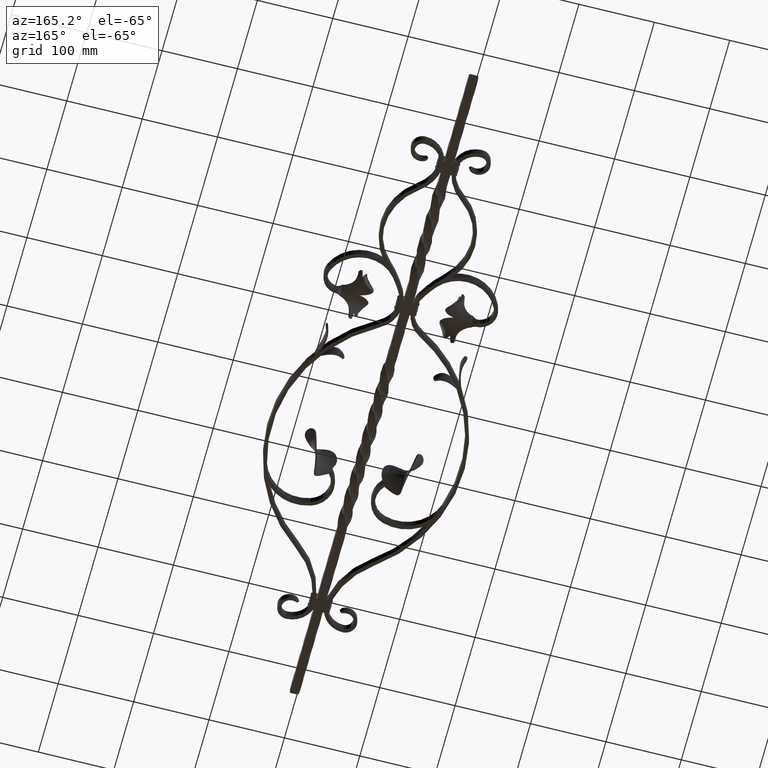
[diagram: clean part render]
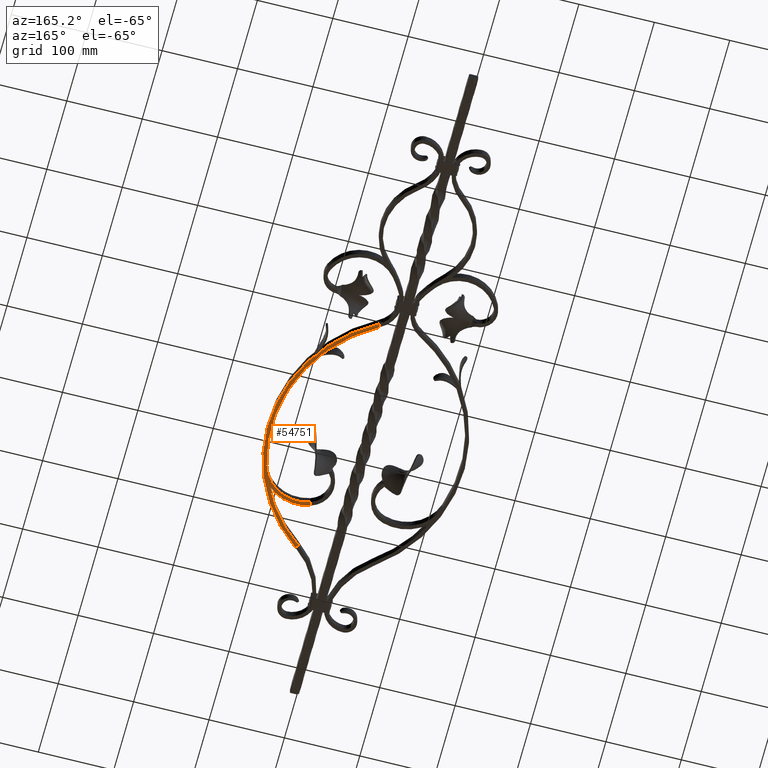
[diagram: same view with one face highlighted and labeled with its STEP entity id]
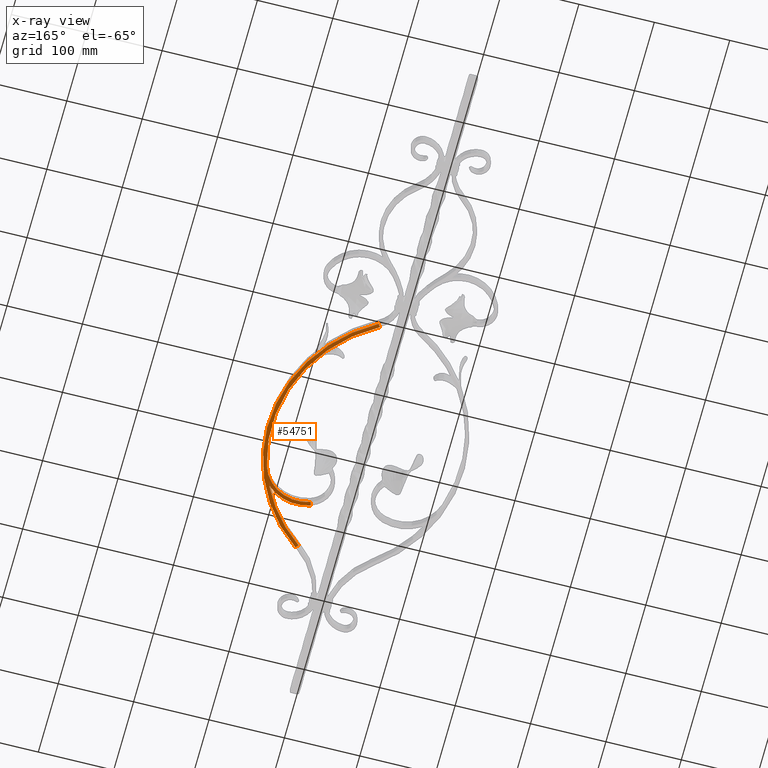
[diagram: x-ray of the same camera — body ghosted, the highlighted face saturated]
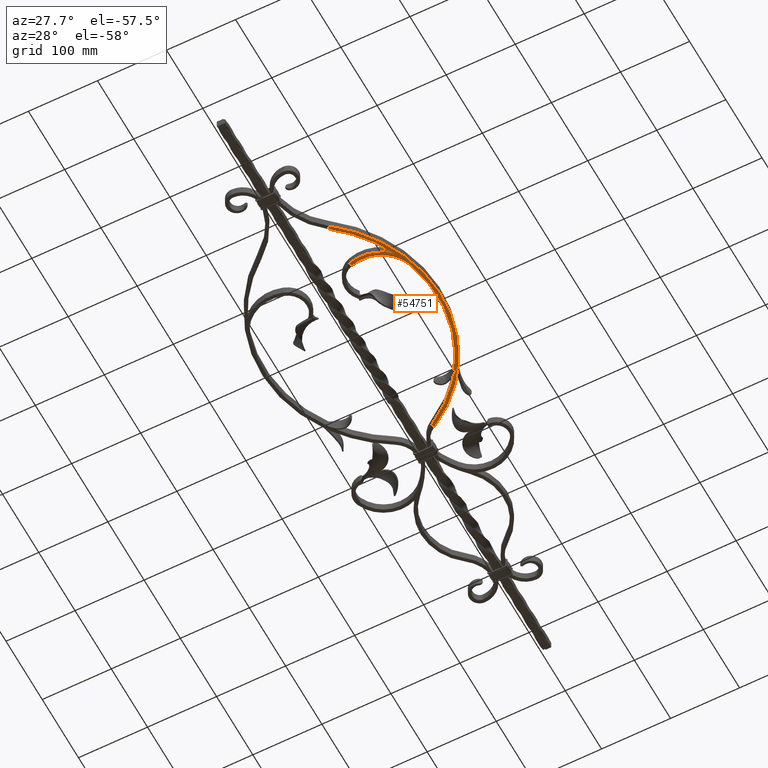
[diagram: same view with one face highlighted and labeled with its STEP entity id]
A machine part, auxiliary view. The second image highlights one B-rep face of the part: STEP entity #54751.
The next image is the same camera in x-ray: the body ghosted, the highlighted face saturated — about 0% of this face is hidden behind the body in this view.
A second angle (auxiliary view) of the same face is appended — the face is thin or edge-on in the first view.
In plain terms, the highlighted planar face has unit normal (-0, 0, -1).
Its self-contained STEP definition (entity closure, byte-faithful):
#236 = CIRCLE ( 'NONE', #22569, 200.6245386149037415 ) ;
#333 = AXIS2_PLACEMENT_3D ( 'NONE', #10826, #44416, #36605 ) ;
#737 = CIRCLE ( 'NONE', #333, 195.6245386149036847 ) ;
#1233 = CARTESIAN_POINT ( 'NONE',  ( 65.76763092655829723, -131.9999998333333338, -6.000000000000000000 ) ) ;
#2471 = CARTESIAN_POINT ( 'NONE',  ( 47.74672717694629398, -187.1293661279631237, -6.000000000000000000 ) ) ;
#3027 = DIRECTION ( 'NONE',  ( 0.6093817276569273300, -0.7928769828906994110, -0.000000000000000000 ) ) ;
#4647 = EDGE_CURVE ( 'NONE', #7759, #42026, #737, .T. ) ;
#5073 = CARTESIAN_POINT ( 'NONE',  ( -70.62453861500259222, -90.29945903481983294, -6.000000000000000000 ) ) ;
#5767 = CARTESIAN_POINT ( 'NONE',  ( 51.63238933652131379, -249.3700379056433860, -6.000000000000000000 ) ) ;
#6900 = DIRECTION ( 'NONE',  ( -0.3107052370615501213, -0.9505063154248507562, -0.000000000000000000 ) ) ;
#7759 = VERTEX_POINT ( 'NONE', #53609 ) ;
#7944 = CIRCLE ( 'NONE', #41854, 58.00000000000212452 ) ;
#8562 = DIRECTION ( 'NONE',  ( -0.000000000000000000, -0.000000000000000000, -1.000000000000000000 ) ) ;
#9014 = EDGE_CURVE ( 'NONE', #42026, #32390, #26416, .T. ) ;
#9368 = DIRECTION ( 'NONE',  ( 0.4972331834549500451, 0.8676169438590143335, 0.000000000000000000 ) ) ;
#9955 = DIRECTION ( 'NONE',  ( -1.000000000000000000, 0.000000000000000000, 0.000000000000000000 ) ) ;
#10378 = EDGE_CURVE ( 'NONE', #7759, #14628, #42262, .T. ) ;
#10516 = AXIS2_PLACEMENT_3D ( 'NONE', #1233, #47987, #26464 ) ;
#10826 = CARTESIAN_POINT ( 'NONE',  ( -70.62453861500259222, -90.29945903481983294, -6.000000000000000000 ) ) ;
#12311 = EDGE_CURVE ( 'NONE', #32390, #54099, #48357, .T. ) ;
#12483 = EDGE_CURVE ( 'NONE', #24838, #38988, #42363, .T. ) ;
#13349 = LINE ( 'NONE', #28641, #40526 ) ;
#13663 = ORIENTED_EDGE ( 'NONE', *, *, #10378, .T. ) ;
#14628 = VERTEX_POINT ( 'NONE', #53744 ) ;
#15180 = DIRECTION ( 'NONE',  ( 0.4972331834549501561, 0.8676169438590142224, -0.000000000000000000 ) ) ;
#15519 = ORIENTED_EDGE ( 'NONE', *, *, #55075, .T. ) ;
#17940 = DIRECTION ( 'NONE',  ( -0.000000000000000000, -0.000000000000000000, -1.000000000000000000 ) ) ;
#19823 = CARTESIAN_POINT ( 'NONE',  ( 26.64647348239179792, 79.42770530207266688, -6.000000000000000000 ) ) ;
#20248 = FACE_OUTER_BOUND ( 'NONE', #24248, .T. ) ;
#21570 = DIRECTION ( 'NONE',  ( 0.9563022665387032051, -0.2923798471388528442, 0.000000000000000000 ) ) ;
#22033 = AXIS2_PLACEMENT_3D ( 'NONE', #50496, #54236, #33060 ) ;
#22569 = AXIS2_PLACEMENT_3D ( 'NONE', #5073, #17940, #9368 ) ;
#22660 = ORIENTED_EDGE ( 'NONE', *, *, #12483, .F. ) ;
#23171 = CARTESIAN_POINT ( 'NONE',  ( 106.5441543421316908, -173.2465165121929545, -6.000000000000000000 ) ) ;
#23295 = AXIS2_PLACEMENT_3D ( 'NONE', #19823, #32397, #9955 ) ;
#24248 = EDGE_LOOP ( 'NONE', ( #22660, #27134, #48127, #50187, #32415, #13663, #15519, #33521 ) ) ;
#24838 = VERTEX_POINT ( 'NONE', #23171 ) ;
#26416 = CIRCLE ( 'NONE', #10516, 53.00000000000211742 ) ;
#26464 = DIRECTION ( 'NONE',  ( 0.9563022665386825549, -0.2923798471389205678, 0.000000000000000000 ) ) ;
#26920 = VERTEX_POINT ( 'NONE', #5767 ) ;
#27134 = ORIENTED_EDGE ( 'NONE', *, *, #38134, .T. ) ;
#28641 = CARTESIAN_POINT ( 'NONE',  ( 48.58548069823670801, -245.4056529911898679, -6.000000000000000000 ) ) ;
#31280 = PLANE ( 'NONE',  #23295 ) ;
#32390 = VERTEX_POINT ( 'NONE', #43312 ) ;
#32397 = DIRECTION ( 'NONE',  ( -0.000000000000000000, 0.000000000000000000, -1.000000000000000000 ) ) ;
#32415 = ORIENTED_EDGE ( 'NONE', *, *, #4647, .F. ) ;
#33060 = DIRECTION ( 'NONE',  ( 0.4972331834549501561, 0.8676169438590144445, 0.000000000000000000 ) ) ;
#33521 = ORIENTED_EDGE ( 'NONE', *, *, #36281, .F. ) ;
#36281 = EDGE_CURVE ( 'NONE', #38988, #26920, #13349, .T. ) ;
#36605 = DIRECTION ( 'NONE',  ( 0.4972331834549501561, 0.8676169438590144445, 0.000000000000000000 ) ) ;
#36662 = CARTESIAN_POINT ( 'NONE',  ( 26.64647348231380519, 79.42770530193665479, -6.000000000000000000 ) ) ;
#38134 = EDGE_CURVE ( 'NONE', #24838, #54099, #7944, .T. ) ;
#38988 = VERTEX_POINT ( 'NONE', #52584 ) ;
#40526 = VECTOR ( 'NONE', #3027, 1000.000000000000000 ) ;
#41854 = AXIS2_PLACEMENT_3D ( 'NONE', #46958, #8562, #21570 ) ;
#42026 = VERTEX_POINT ( 'NONE', #49571 ) ;
#42262 = LINE ( 'NONE', #36662, #54230 ) ;
#42363 = CIRCLE ( 'NONE', #22033, 195.6245386149036847 ) ;
#43312 = CARTESIAN_POINT ( 'NONE',  ( 49.30025336225403265, -182.3768345508388791, -6.000000000000000000 ) ) ;
#44416 = DIRECTION ( 'NONE',  ( -0.000000000000000000, -0.000000000000000000, -1.000000000000000000 ) ) ;
#46958 = CARTESIAN_POINT ( 'NONE',  ( 65.76763092655829723, -131.9999998333333338, -6.000000000000000000 ) ) ;
#47987 = DIRECTION ( 'NONE',  ( -0.000000000000000000, -0.000000000000000000, -1.000000000000000000 ) ) ;
#48127 = ORIENTED_EDGE ( 'NONE', *, *, #12311, .F. ) ;
#48357 = LINE ( 'NONE', #2471, #53686 ) ;
#49571 = CARTESIAN_POINT ( 'NONE',  ( 116.4516510530138902, -147.4961317316671909, -6.000000000000000000 ) ) ;
#50115 = CARTESIAN_POINT ( 'NONE',  ( 47.74672717694629398, -187.1293661279631522, -6.000000000000000000 ) ) ;
#50187 = ORIENTED_EDGE ( 'NONE', *, *, #9014, .F. ) ;
#50496 = CARTESIAN_POINT ( 'NONE',  ( -70.62453861500259222, -90.29945903481983294, -6.000000000000000000 ) ) ;
#52584 = CARTESIAN_POINT ( 'NONE',  ( 48.58548069823672222, -245.4056529911898394, -6.000000000000000000 ) ) ;
#53609 = CARTESIAN_POINT ( 'NONE',  ( 26.64647348231383006, 79.42770530193668321, -6.000000000000000000 ) ) ;
#53686 = VECTOR ( 'NONE', #6900, 1000.000000000000000 ) ;
#53744 = CARTESIAN_POINT ( 'NONE',  ( 29.13263939958855531, 83.76579002123176565, -6.000000000000000000 ) ) ;
#54099 = VERTEX_POINT ( 'NONE', #50115 ) ;
#54230 = VECTOR ( 'NONE', #15180, 1000.000000000000114 ) ;
#54236 = DIRECTION ( 'NONE',  ( -0.000000000000000000, -0.000000000000000000, -1.000000000000000000 ) ) ;
#54751 = ADVANCED_FACE ( 'NONE', ( #20248 ), #31280, .T. ) ;
#55075 = EDGE_CURVE ( 'NONE', #14628, #26920, #236, .T. ) ;